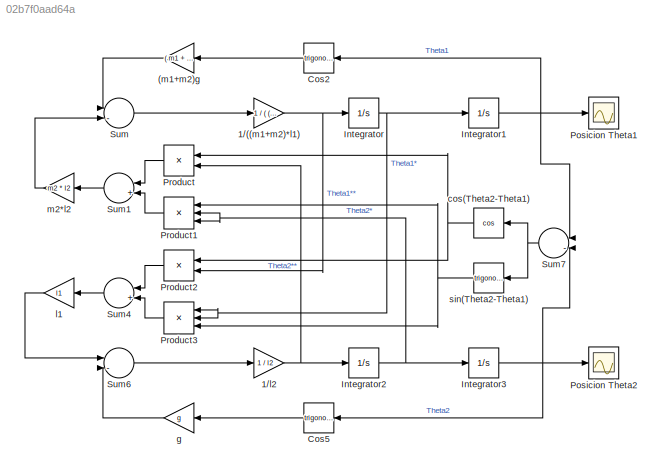
MODEL slx_02b7f0aad64a
KIND model
CONFIG AbsTol = auto
CONFIG EnableMultiTasking = off
CONFIG FixedStep = 0.00001
CONFIG MaxStep = 0.00001
CONFIG MinStep = auto
CONFIG RelTol = 1e-3
CONFIG SampleTimeConstraint = Unconstrained
CONFIG SolverName = ode45
CONFIG StartTime = 0.0
CONFIG StopTime = 10.0
BLOCK [Gain] (m1+m2)g
  Gain = ( m1 + m2 ) * g
  NameLocation = top
BLOCK [Gain] 1//((m1+m2)*l1)
  Gain = 1 / ( ( m1 + m2 ) * l1 )
BLOCK [Gain] 1//l2
  Gain = 1 / l2
BLOCK [Trigonometry] Cos2
  NameLocation = top
BLOCK [Trigonometry] Cos5
  NameLocation = top
BLOCK [Integrator] Integrator
BLOCK [Integrator] Integrator1
BLOCK [Integrator] Integrator2
BLOCK [Integrator] Integrator3
  InitialCondition = (35 * pi) / 180
BLOCK [Scope] Posicion Theta1
  Floating = off
  NumInputPorts = 1
  ScopeSpecificationString = Simulink.scopes.TimeScopeBlockCfg('CurrentConfiguration', extmgr.ConfigurationSet(extmgr.Configuration('Core','General UI',true),extmgr.Configuration('Core','Source UI',true),extmgr.Configuration('Sources','WiredSimulink',true),extmgr.Configuration('Visuals','Time Domain',true,'SerializedDisplays',{struct('MinYLimReal','-0.39249','MaxYLimReal','0.39137','YLabelReal','','MinYLimMag','0.00000','MaxY...<+1363ch>
BLOCK [Scope] Posicion Theta2
  Floating = off
  NumInputPorts = 1
  ScopeSpecificationString = Simulink.scopes.TimeScopeBlockCfg('CurrentConfiguration', extmgr.ConfigurationSet(extmgr.Configuration('Core','General UI',true),extmgr.Configuration('Core','Source UI',true),extmgr.Configuration('Sources','WiredSimulink',true,'DataLoggingVariableName','ScopeData1'),extmgr.Configuration('Visuals','Time Domain',true,'SerializedDisplays',{struct('MinYLimReal','-0.76298','MaxYLimReal','0.76351','YLab...<+1397ch>
BLOCK [Product] Product
  NameLocation = top
BLOCK [Product] Product1
  Inputs = 3
  NameLocation = top
BLOCK [Product] Product2
  NameLocation = top
BLOCK [Product] Product3
  Inputs = 3
  NameLocation = top
BLOCK [Sum] Sum
  Inputs = |-|-|
BLOCK [Sum] Sum1
  Inputs = |+|-|
  NameLocation = top
BLOCK [Sum] Sum4
  Inputs = |+|+|
  NameLocation = top
BLOCK [Sum] Sum6
  Inputs = |-|-|
BLOCK [Sum] Sum7
  Inputs = |-|+|
  NameLocation = top
BLOCK [Trigonometry] cos(Theta2-Theta1)
  NameLocation = top
  Operator = cos
BLOCK [Gain] g
  Gain = g
  NameLocation = top
BLOCK [Gain] l1
  Gain = l1
BLOCK [Gain] m2*l2
  Gain = m2 * l2
BLOCK [Trigonometry] sin(Theta2-Theta1)
LINE (m1+m2)g:1 -> Sum:1
NET 1//((m1+m2)*l1):1 -> Integrator:1, Product2:2
NET 1//l2:1 -> Integrator2:1, Product:2
LINE Cos2:1 -> (m1+m2)g:1
LINE Cos5:1 -> g:1
NET Integrator1:1 -> Cos2:1, Posicion Theta1:1, Sum7:1
NET Integrator2:1 -> Integrator3:1, Product1:2, Product1:3
NET Integrator3:1 -> Cos5:1, Posicion Theta2:1, Sum7:2
NET Integrator:1 -> Integrator1:1, Product3:1, Product3:2
LINE Product1:1 -> Sum1:2
LINE Product2:1 -> Sum4:1
LINE Product3:1 -> Sum4:2
LINE Product:1 -> Sum1:1
LINE Sum1:1 -> m2*l2:1
LINE Sum4:1 -> l1:1
LINE Sum6:1 -> 1//l2:1
NET Sum7:1 -> cos(Theta2-Theta1):1, sin(Theta2-Theta1):1
LINE Sum:1 -> 1//((m1+m2)*l1):1
NET cos(Theta2-Theta1):1 -> Product2:1, Product:1
LINE g:1 -> Sum6:2
LINE l1:1 -> Sum6:1
LINE m2*l2:1 -> Sum:2
NET sin(Theta2-Theta1):1 -> Product1:1, Product3:3
note: NET lines group one-source signal fan-out (src -> all destinations, sorted); 1:1 wires keep LINE
